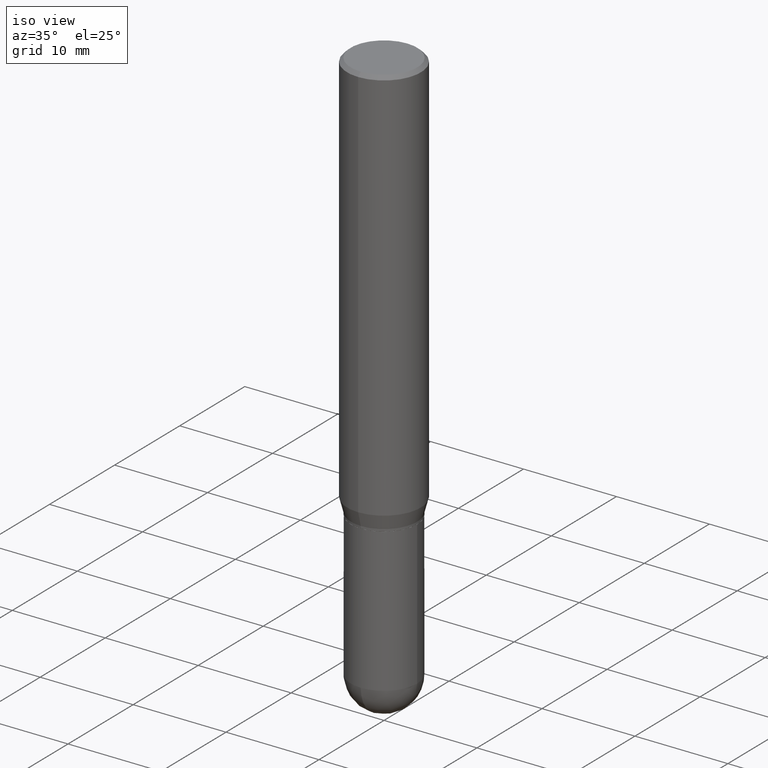
[diagram: clean part render]
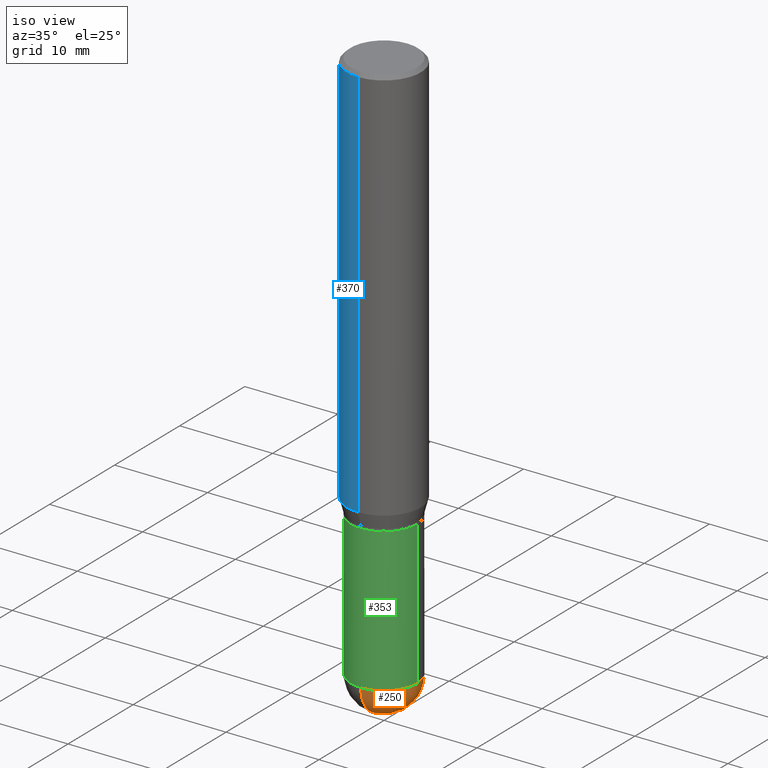
[diagram: same view with three faces highlighted in distinct colors, each labeled with its STEP entity id]
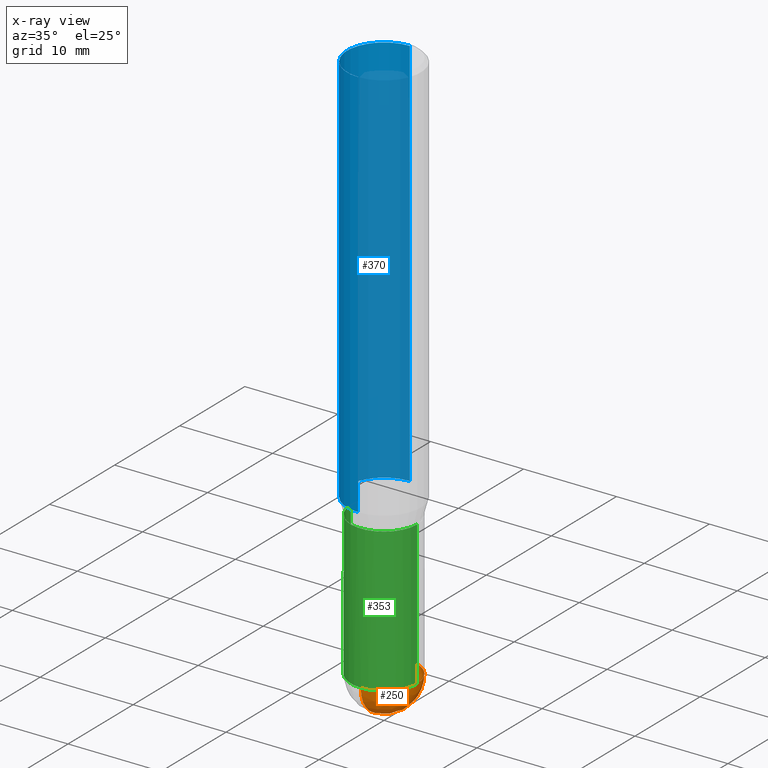
[diagram: x-ray of the same camera — body ghosted, the three highlighted faces saturated]
A machine part, iso view with three faces highlighted in distinct colors.
The next image is the same camera in x-ray (body ghosted, the three faces saturated) — at least one of them is partly hidden behind the body in this view.
Their STEP definitions:

[orange] entity #250 — the highlighted spherical surface has radius 3.5712 mm.
#109 = CIRCLE ( 'NONE', #399, 0.1406000000000000860 ) ;
#113 = DIRECTION ( 'NONE',  ( 1.000000000000000000, -6.982962677686270655E-15, 0.000000000000000000 ) ) ;
#123 = SPHERICAL_SURFACE ( 'NONE', #205, 0.1406000000000000860 ) ;
#127 = CARTESIAN_POINT ( 'NONE',  ( 0.1406000000000000583, -8.155751259403701439E-15, -2.359399999999999942 ) ) ;
#147 = EDGE_CURVE ( 'NONE', #283, #322, #172, .T. ) ;
#153 = DIRECTION ( 'NONE',  ( -2.445468806185136597E-29, 3.491481338843145583E-15, 1.000000000000000000 ) ) ;
#167 = FACE_OUTER_BOUND ( 'NONE', #405, .T. ) ;
#172 = CIRCLE ( 'NONE', #291, 0.1406000000000000860 ) ;
#175 = ORIENTED_EDGE ( 'NONE', *, *, #433, .F. ) ;
#177 = DIRECTION ( 'NONE',  ( -2.445468806185136597E-29, 3.491481338843145583E-15, 1.000000000000000000 ) ) ;
#178 = ORIENTED_EDGE ( 'NONE', *, *, #217, .T. ) ;
#205 = AXIS2_PLACEMENT_3D ( 'NONE', #431, #268, #312 ) ;
#206 = CARTESIAN_POINT ( 'NONE',  ( 5.757815463287349061E-29, -8.255019604862529009E-15, -2.359399999999999942 ) ) ;
#210 = DIRECTION ( 'NONE',  ( -1.000000000000000000, 7.105427357601001070E-15, -4.926315508542082329E-29 ) ) ;
#216 = ORIENTED_EDGE ( 'NONE', *, *, #363, .F. ) ;
#217 = EDGE_CURVE ( 'NONE', #283, #470, #109, .T. ) ;
#240 = CARTESIAN_POINT ( 'NONE',  ( 6.107660196449910766E-29, -8.737312614105869844E-15, -2.500000000000000000 ) ) ;
#241 = ORIENTED_EDGE ( 'NONE', *, *, #147, .F. ) ;
#246 = VERTEX_POINT ( 'NONE', #127 ) ;
#247 = CIRCLE ( 'NONE', #285, 0.1406000000000000305 ) ;
#250 = ADVANCED_FACE ( 'NONE', ( #167 ), #123, .T. ) ;
#252 = CIRCLE ( 'NONE', #468, 0.1406000000000000305 ) ;
#264 = CARTESIAN_POINT ( 'NONE',  ( 5.769839101313211634E-29, -8.237801070866517629E-15, -2.359399999999999942 ) ) ;
#268 = DIRECTION ( 'NONE',  ( -1.000000000000000000, 6.982962677686265922E-15, -4.883557194083112340E-29 ) ) ;
#280 = DIRECTION ( 'NONE',  ( 6.982962677686266711E-15, 1.000000000000000000, 0.000000000000000000 ) ) ;
#283 = VERTEX_POINT ( 'NONE', #240 ) ;
#285 = AXIS2_PLACEMENT_3D ( 'NONE', #293, #177, #307 ) ;
#291 = AXIS2_PLACEMENT_3D ( 'NONE', #206, #210, #484 ) ;
#293 = CARTESIAN_POINT ( 'NONE',  ( 5.769839101313211634E-29, -8.237801070866517629E-15, -2.359399999999999942 ) ) ;
#307 = DIRECTION ( 'NONE',  ( 1.000000000000000000, -6.982962677686270655E-15, 0.000000000000000000 ) ) ;
#312 = DIRECTION ( 'NONE',  ( 6.982962677686265922E-15, 1.000000000000000000, -3.885985766236502230E-15 ) ) ;
#321 = CARTESIAN_POINT ( 'NONE',  ( 5.757815463287349061E-29, -8.255019604862529009E-15, -2.359399999999999942 ) ) ;
#322 = VERTEX_POINT ( 'NONE', #329 ) ;
#329 = CARTESIAN_POINT ( 'NONE',  ( -9.990230864786434913E-16, -0.1406000000000083017, -2.359399999999999498 ) ) ;
#363 = EDGE_CURVE ( 'NONE', #246, #470, #247, .T. ) ;
#399 = AXIS2_PLACEMENT_3D ( 'NONE', #321, #445, #280 ) ;
#405 = EDGE_LOOP ( 'NONE', ( #241, #178, #216, #175 ) ) ;
#431 = CARTESIAN_POINT ( 'NONE',  ( 5.757815463287349061E-29, -8.255019604862529009E-15, -2.359399999999999942 ) ) ;
#433 = EDGE_CURVE ( 'NONE', #322, #246, #252, .T. ) ;
#445 = DIRECTION ( 'NONE',  ( 1.000000000000000000, -6.982962677686265922E-15, 4.883557194083112340E-29 ) ) ;
#462 = CARTESIAN_POINT ( 'NONE',  ( 9.818045524827470871E-16, 0.1405999999999918426, -2.359400000000000386 ) ) ;
#468 = AXIS2_PLACEMENT_3D ( 'NONE', #264, #153, #113 ) ;
#470 = VERTEX_POINT ( 'NONE', #462 ) ;
#484 = DIRECTION ( 'NONE',  ( -7.105427357601001859E-15, -1.000000000000000000, 0.000000000000000000 ) ) ;

[blue] entity #370 — the highlighted cylindrical surface (partial cylindrical patch) has radius 3.9688 mm, axis along (-0, 0, 1).
#7 = EDGE_CURVE ( 'NONE', #62, #73, #176, .T. ) ;
#9 = DIRECTION ( 'NONE',  ( -2.445560966219159716E-29, 3.491349360429001039E-15, 1.000000000000000000 ) ) ;
#53 = ORIENTED_EDGE ( 'NONE', *, *, #282, .T. ) ;
#62 = VERTEX_POINT ( 'NONE', #218 ) ;
#73 = VERTEX_POINT ( 'NONE', #215 ) ;
#81 = AXIS2_PLACEMENT_3D ( 'NONE', #258, #9, #299 ) ;
#94 = DIRECTION ( 'NONE',  ( -6.982962677686265133E-15, -1.000000000000000000, 3.496765431890256920E-15 ) ) ;
#125 = CIRCLE ( 'NONE', #81, 0.1562500000000000000 ) ;
#135 = DIRECTION ( 'NONE',  ( -2.445560966219159716E-29, 3.491349360429001039E-15, 1.000000000000000000 ) ) ;
#151 = DIRECTION ( 'NONE',  ( -2.445560966219159996E-29, 3.491349360429000645E-15, 1.000000000000000000 ) ) ;
#160 = FACE_OUTER_BOUND ( 'NONE', #220, .T. ) ;
#176 = LINE ( 'NONE', #451, #437 ) ;
#188 = ORIENTED_EDGE ( 'NONE', *, *, #7, .T. ) ;
#213 = CIRCLE ( 'NONE', #360, 0.1562500000000000000 ) ;
#215 = CARTESIAN_POINT ( 'NONE',  ( -1.091087918388478779E-15, -0.1562500000000000833, -0.01499999999999948423 ) ) ;
#218 = CARTESIAN_POINT ( 'NONE',  ( -1.091087918388437956E-15, -0.1562500000000058842, -1.681593404861546404 ) ) ;
#220 = EDGE_LOOP ( 'NONE', ( #442, #53, #188, #458 ) ) ;
#226 = CYLINDRICAL_SURFACE ( 'NONE', #344, 0.1562500000000000000 ) ;
#258 = CARTESIAN_POINT ( 'NONE',  ( 3.668341449328747176E-31, -5.237024040643512307E-17, -0.01500000000000003067 ) ) ;
#266 = DIRECTION ( 'NONE',  ( -2.445560966219159716E-29, 3.491349360429001039E-15, 1.000000000000000000 ) ) ;
#282 = EDGE_CURVE ( 'NONE', #381, #62, #213, .T. ) ;
#299 = DIRECTION ( 'NONE',  ( -6.982962677686265133E-15, -1.000000000000000000, 3.496765431890256920E-15 ) ) ;
#339 = VERTEX_POINT ( 'NONE', #499 ) ;
#344 = AXIS2_PLACEMENT_3D ( 'NONE', #424, #266, #349 ) ;
#349 = DIRECTION ( 'NONE',  ( -6.982962677686265133E-15, -1.000000000000000000, 3.491349360429001039E-15 ) ) ;
#360 = AXIS2_PLACEMENT_3D ( 'NONE', #486, #135, #94 ) ;
#370 = ADVANCED_FACE ( 'NONE', ( #160 ), #226, .T. ) ;
#381 = VERTEX_POINT ( 'NONE', #385 ) ;
#385 = CARTESIAN_POINT ( 'NONE',  ( 1.110223024625197561E-15, 0.1562499999999941436, -1.681593404861547514 ) ) ;
#409 = DIRECTION ( 'NONE',  ( -2.445560966219159996E-29, 3.491349360429000645E-15, 1.000000000000000000 ) ) ;
#420 = VECTOR ( 'NONE', #151, 39.37007874015748143 ) ;
#423 = EDGE_CURVE ( 'NONE', #381, #339, #511, .T. ) ;
#424 = CARTESIAN_POINT ( 'NONE',  ( 0.000000000000000000, 0.000000000000000000, 0.000000000000000000 ) ) ;
#437 = VECTOR ( 'NONE', #409, 39.37007874015748143 ) ;
#442 = ORIENTED_EDGE ( 'NONE', *, *, #423, .F. ) ;
#451 = CARTESIAN_POINT ( 'NONE',  ( -1.091087918388478976E-15, -0.1562500000000000000, 5.455233375670314124E-16 ) ) ;
#458 = ORIENTED_EDGE ( 'NONE', *, *, #482, .F. ) ;
#463 = CARTESIAN_POINT ( 'NONE',  ( 1.110223024625156343E-15, 0.1562500000000000000, -5.455233375670314124E-16 ) ) ;
#482 = EDGE_CURVE ( 'NONE', #339, #73, #125, .T. ) ;
#486 = CARTESIAN_POINT ( 'NONE',  ( 4.112439191980971805E-29, -5.871030058564987327E-15, -1.681593404861546848 ) ) ;
#499 = CARTESIAN_POINT ( 'NONE',  ( 1.110223024625197561E-15, 0.1562499999999999445, -0.01500000000000057711 ) ) ;
#511 = LINE ( 'NONE', #463, #420 ) ;

[green] entity #353 — the highlighted cylindrical surface (partial cylindrical patch) has radius 3.5712 mm, axis along (-0, 0, 1).
#8 = DIRECTION ( 'NONE',  ( 1.000000000000000000, -6.982962677686265133E-15, 0.000000000000000000 ) ) ;
#35 = CARTESIAN_POINT ( 'NONE',  ( -0.1406000000000000028, -6.174923620442310269E-15, -1.750000000000000222 ) ) ;
#47 = CARTESIAN_POINT ( 'NONE',  ( -0.1406000000000000583, -6.174923620442310269E-15, -2.359399999999999942 ) ) ;
#52 = CARTESIAN_POINT ( 'NONE',  ( 0.1406000000000000028, -9.818045524826893030E-16, 6.855904546769086274E-30 ) ) ;
#54 = CARTESIAN_POINT ( 'NONE',  ( 0.1406000000000000028, -7.091896895458194566E-15, -1.750000000000000222 ) ) ;
#75 = AXIS2_PLACEMENT_3D ( 'NONE', #432, #128, #441 ) ;
#76 = VERTEX_POINT ( 'NONE', #47 ) ;
#83 = EDGE_CURVE ( 'NONE', #416, #87, #180, .T. ) ;
#87 = VERTEX_POINT ( 'NONE', #54 ) ;
#90 = LINE ( 'NONE', #52, #274 ) ;
#99 = ORIENTED_EDGE ( 'NONE', *, *, #233, .F. ) ;
#104 = CARTESIAN_POINT ( 'NONE',  ( -0.1406000000000000028, 9.990230864787008809E-16, -6.916022736898399140E-30 ) ) ;
#113 = DIRECTION ( 'NONE',  ( 1.000000000000000000, -6.982962677686270655E-15, 0.000000000000000000 ) ) ;
#118 = AXIS2_PLACEMENT_3D ( 'NONE', #224, #378, #507 ) ;
#127 = CARTESIAN_POINT ( 'NONE',  ( 0.1406000000000000583, -8.155751259403701439E-15, -2.359399999999999942 ) ) ;
#128 = DIRECTION ( 'NONE',  ( -2.445468806185136597E-29, 3.491481338843145583E-15, 1.000000000000000000 ) ) ;
#153 = DIRECTION ( 'NONE',  ( -2.445468806185136597E-29, 3.491481338843145583E-15, 1.000000000000000000 ) ) ;
#158 = CIRCLE ( 'NONE', #75, 0.1406000000000000305 ) ;
#180 = CIRCLE ( 'NONE', #301, 0.1406000000000000028 ) ;
#184 = ORIENTED_EDGE ( 'NONE', *, *, #83, .F. ) ;
#185 = CARTESIAN_POINT ( 'NONE',  ( 4.279570410823989044E-29, -6.110092342975505460E-15, -1.750000000000000222 ) ) ;
#203 = EDGE_CURVE ( 'NONE', #76, #322, #158, .T. ) ;
#221 = EDGE_CURVE ( 'NONE', #246, #87, #90, .T. ) ;
#224 = CARTESIAN_POINT ( 'NONE',  ( 0.000000000000000000, 0.000000000000000000, 0.000000000000000000 ) ) ;
#233 = EDGE_CURVE ( 'NONE', #76, #416, #374, .T. ) ;
#246 = VERTEX_POINT ( 'NONE', #127 ) ;
#252 = CIRCLE ( 'NONE', #468, 0.1406000000000000305 ) ;
#264 = CARTESIAN_POINT ( 'NONE',  ( 5.769839101313211634E-29, -8.237801070866517629E-15, -2.359399999999999942 ) ) ;
#274 = VECTOR ( 'NONE', #449, 39.37007874015748143 ) ;
#298 = DIRECTION ( 'NONE',  ( -2.445468806185136597E-29, 3.491481338843145583E-15, 1.000000000000000000 ) ) ;
#301 = AXIS2_PLACEMENT_3D ( 'NONE', #185, #298, #8 ) ;
#322 = VERTEX_POINT ( 'NONE', #329 ) ;
#329 = CARTESIAN_POINT ( 'NONE',  ( -9.990230864786434913E-16, -0.1406000000000083017, -2.359399999999999498 ) ) ;
#335 = DIRECTION ( 'NONE',  ( -2.445468806185136877E-29, 3.491481338843145188E-15, 1.000000000000000000 ) ) ;
#352 = CYLINDRICAL_SURFACE ( 'NONE', #118, 0.1406000000000000028 ) ;
#353 = ADVANCED_FACE ( 'NONE', ( #359 ), #352, .T. ) ;
#359 = FACE_OUTER_BOUND ( 'NONE', #406, .T. ) ;
#374 = LINE ( 'NONE', #104, #439 ) ;
#378 = DIRECTION ( 'NONE',  ( -2.445468806185136597E-29, 3.491481338843145583E-15, 1.000000000000000000 ) ) ;
#406 = EDGE_LOOP ( 'NONE', ( #99, #508, #444, #456, #184 ) ) ;
#416 = VERTEX_POINT ( 'NONE', #35 ) ;
#432 = CARTESIAN_POINT ( 'NONE',  ( 5.769839101313211634E-29, -8.237801070866517629E-15, -2.359399999999999942 ) ) ;
#433 = EDGE_CURVE ( 'NONE', #322, #246, #252, .T. ) ;
#439 = VECTOR ( 'NONE', #335, 39.37007874015748143 ) ;
#441 = DIRECTION ( 'NONE',  ( 1.000000000000000000, -6.982962677686270655E-15, 0.000000000000000000 ) ) ;
#444 = ORIENTED_EDGE ( 'NONE', *, *, #433, .T. ) ;
#449 = DIRECTION ( 'NONE',  ( -2.445468806185136877E-29, 3.491481338843145188E-15, 1.000000000000000000 ) ) ;
#456 = ORIENTED_EDGE ( 'NONE', *, *, #221, .T. ) ;
#468 = AXIS2_PLACEMENT_3D ( 'NONE', #264, #153, #113 ) ;
#507 = DIRECTION ( 'NONE',  ( 1.000000000000000000, -6.982962677686268288E-15, 4.876176775795936353E-29 ) ) ;
#508 = ORIENTED_EDGE ( 'NONE', *, *, #203, .T. ) ;